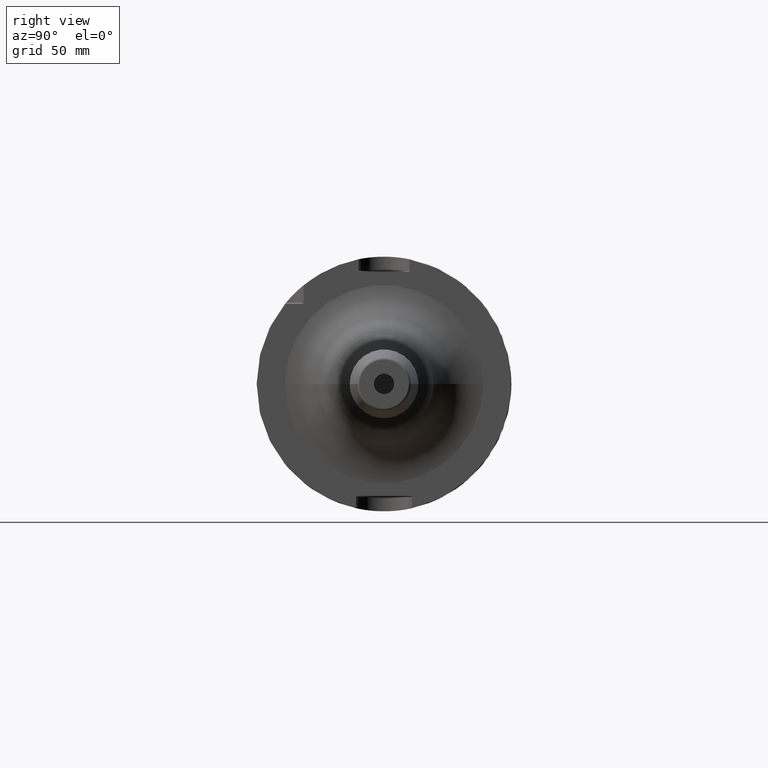
[diagram: clean part render]
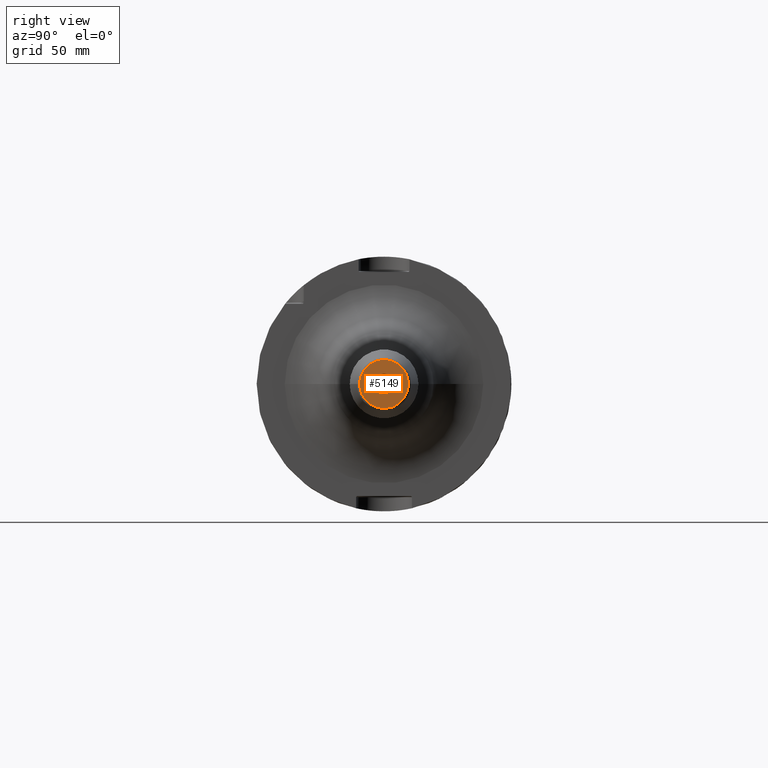
[diagram: same view with one face highlighted and labeled with its STEP entity id]
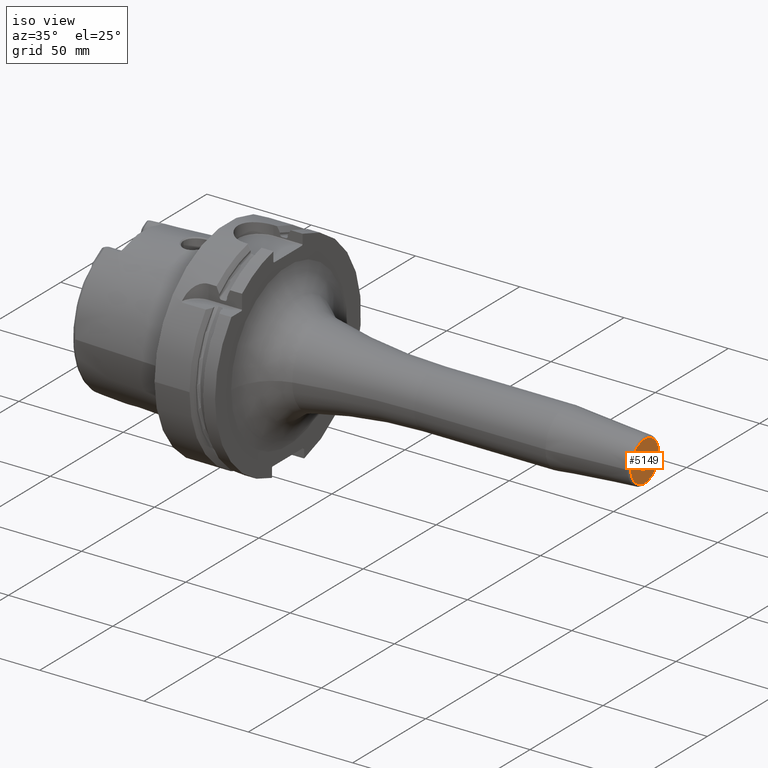
[diagram: same view with one face highlighted and labeled with its STEP entity id]
A machine part, right view. The second image highlights one B-rep face of the part: STEP entity #5149.
A second angle (iso view) of the same face is appended — the face is thin or edge-on in the first view.
In plain terms, the highlighted planar face has unit normal (1, 0, 0).
Its self-contained STEP definition (entity closure, byte-faithful):
#1896=CARTESIAN_POINT('',(2.E2,0.E0,0.E0));
#1897=DIRECTION('',(1.E0,0.E0,0.E0));
#1898=DIRECTION('',(0.E0,1.E0,0.E0));
#1899=AXIS2_PLACEMENT_3D('',#1896,#1897,#1898);
#1901=CARTESIAN_POINT('',(2.E2,0.E0,0.E0));
#1902=DIRECTION('',(1.E0,0.E0,0.E0));
#1903=DIRECTION('',(0.E0,-1.E0,0.E0));
#1904=AXIS2_PLACEMENT_3D('',#1901,#1902,#1903);
#1906=CARTESIAN_POINT('',(2.E2,0.E0,0.E0));
#1907=DIRECTION('',(-1.E0,0.E0,0.E0));
#1908=DIRECTION('',(0.E0,1.E0,0.E0));
#1909=AXIS2_PLACEMENT_3D('',#1906,#1907,#1908);
#1911=CARTESIAN_POINT('',(2.E2,0.E0,0.E0));
#1912=DIRECTION('',(-1.E0,0.E0,0.E0));
#1913=DIRECTION('',(0.E0,-1.E0,0.E0));
#1914=AXIS2_PLACEMENT_3D('',#1911,#1912,#1913);
#3153=CARTESIAN_POINT('',(2.E2,4.E0,0.E0));
#3154=VERTEX_POINT('',#3153);
#3155=CARTESIAN_POINT('',(2.E2,-4.E0,0.E0));
#3156=VERTEX_POINT('',#3155);
#3161=CARTESIAN_POINT('',(2.E2,9.575609508342E0,0.E0));
#3162=CARTESIAN_POINT('',(2.E2,-9.575609508342E0,0.E0));
#3163=VERTEX_POINT('',#3161);
#3164=VERTEX_POINT('',#3162);
#5134=CARTESIAN_POINT('',(2.E2,0.E0,0.E0));
#5135=DIRECTION('',(1.E0,0.E0,0.E0));
#5136=DIRECTION('',(0.E0,-1.E0,0.E0));
#5137=AXIS2_PLACEMENT_3D('',#5134,#5135,#5136);
#5138=PLANE('',#5137);
#5139=ORIENTED_EDGE('',*,*,#5116,.T.);
#5140=ORIENTED_EDGE('',*,*,#5101,.T.);
#5141=EDGE_LOOP('',(#5139,#5140));
#5142=FACE_OUTER_BOUND('',#5141,.F.);
#5144=ORIENTED_EDGE('',*,*,#5143,.T.);
#5146=ORIENTED_EDGE('',*,*,#5145,.T.);
#5147=EDGE_LOOP('',(#5144,#5146));
#5148=FACE_BOUND('',#5147,.F.);
#5149=ADVANCED_FACE('',(#5142,#5148),#5138,.T.);
#1900=CIRCLE('',#1899,4.E0);
#1905=CIRCLE('',#1904,4.E0);
#1910=CIRCLE('',#1909,9.575609508342E0);
#1915=CIRCLE('',#1914,9.575609508342E0);
#5101=EDGE_CURVE('',#3164,#3163,#1915,.T.);
#5116=EDGE_CURVE('',#3163,#3164,#1910,.T.);
#5143=EDGE_CURVE('',#3154,#3156,#1900,.T.);
#5145=EDGE_CURVE('',#3156,#3154,#1905,.T.);